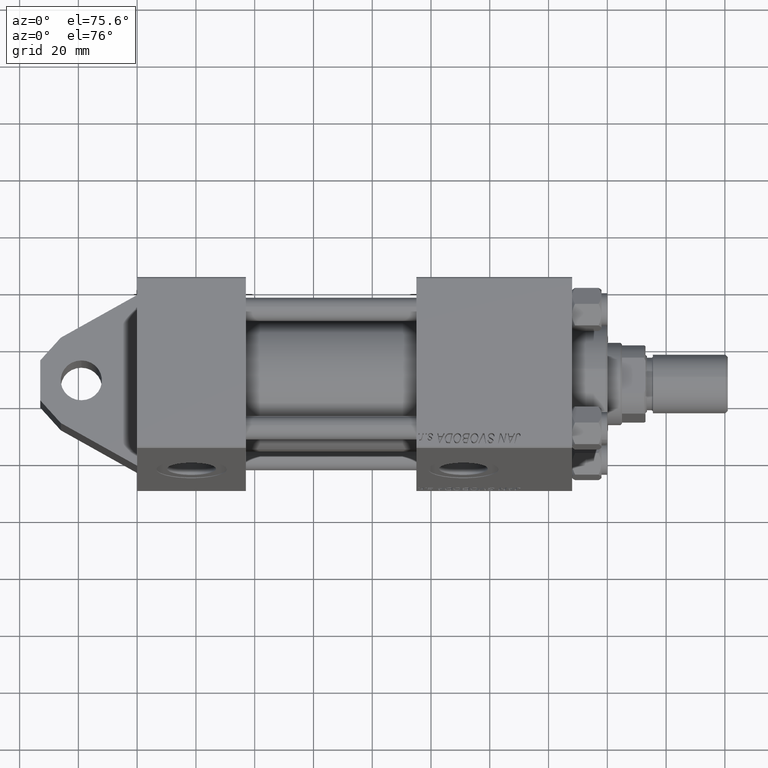
[diagram: clean part render]
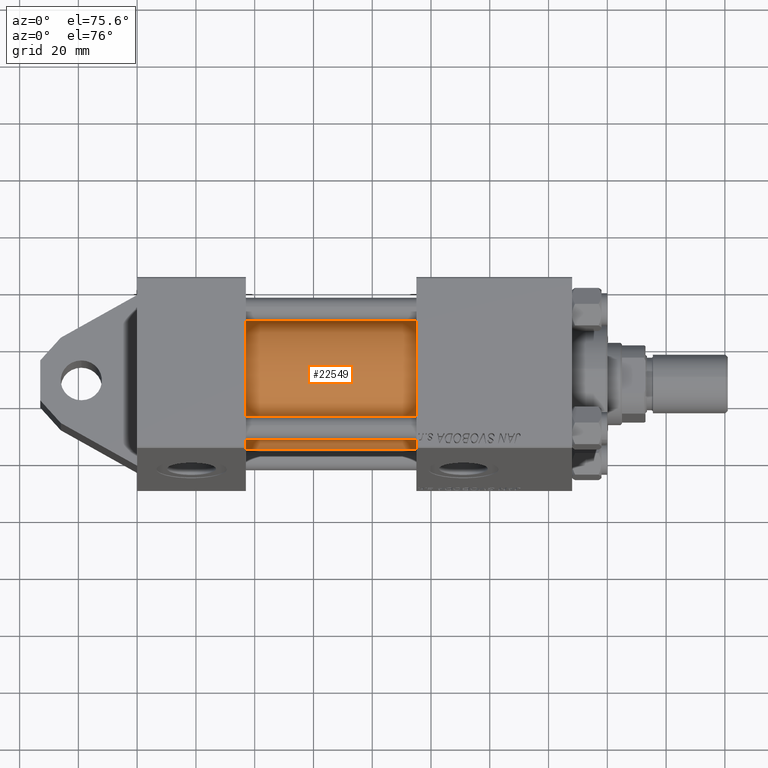
[diagram: same view with one face highlighted and labeled with its STEP entity id]
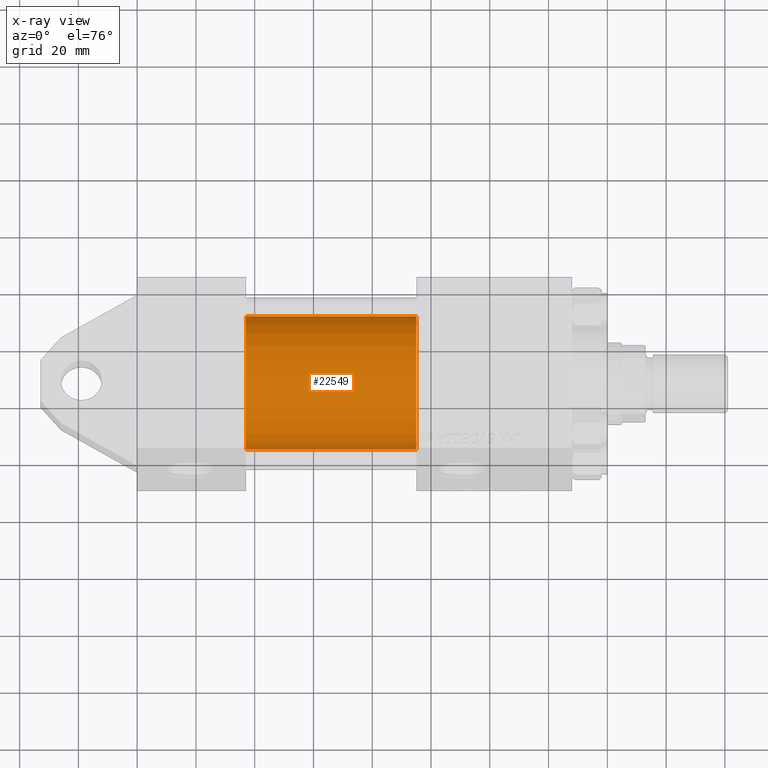
[diagram: x-ray of the same camera — body ghosted, the highlighted face saturated]
A machine part, auxiliary view. The second image highlights one B-rep face of the part: STEP entity #22549.
The next image is the same camera in x-ray: the body ghosted, the highlighted face saturated — about 0% of this face is hidden behind the body in this view.
In plain terms, the highlighted cylindrical surface (partial cylindrical patch) has radius 23 mm, axis along (-1, -0, 0).
Its self-contained STEP definition (entity closure, byte-faithful):
#841 = DIRECTION ( 'NONE',  ( -1.000000000000000000, -0.000000000000000000, -0.000000000000000000 ) ) ;
#1318 = DIRECTION ( 'NONE',  ( 0.000000000000000000, 0.000000000000000000, 1.000000000000000000 ) ) ;
#1670 = DIRECTION ( 'NONE',  ( -1.000000000000000000, -0.000000000000000000, -0.000000000000000000 ) ) ;
#4452 = LINE ( 'NONE', #36636, #35068 ) ;
#4619 = VERTEX_POINT ( 'NONE', #26916 ) ;
#4620 = CARTESIAN_POINT ( 'NONE',  ( 95.00000000000000000, -2.602085213965210642E-15, 0.000000000000000000 ) ) ;
#4714 = DIRECTION ( 'NONE',  ( 1.000000000000000000, -0.000000000000000000, 0.000000000000000000 ) ) ;
#5097 = FACE_OUTER_BOUND ( 'NONE', #17337, .T. ) ;
#11985 = DIRECTION ( 'NONE',  ( -1.000000000000000000, -0.000000000000000000, -0.000000000000000000 ) ) ;
#12819 = EDGE_CURVE ( 'NONE', #4619, #31251, #46369, .T. ) ;
#14733 = CARTESIAN_POINT ( 'NONE',  ( 95.00000000000000000, -2.602085213965210642E-15, 0.000000000000000000 ) ) ;
#15102 = ORIENTED_EDGE ( 'NONE', *, *, #36754, .T. ) ;
#16186 = CARTESIAN_POINT ( 'NONE',  ( 37.00000000000000000, -2.602085213965210642E-15, 23.00000000000000000 ) ) ;
#17337 = EDGE_LOOP ( 'NONE', ( #37468, #15102, #28674, #39380 ) ) ;
#18108 = CARTESIAN_POINT ( 'NONE',  ( 37.00000000000000000, -2.602085213965210642E-15, 0.000000000000000000 ) ) ;
#18165 = EDGE_CURVE ( 'NONE', #39574, #45699, #41284, .T. ) ;
#18940 = CYLINDRICAL_SURFACE ( 'NONE', #34551, 23.00000000000000000 ) ;
#22549 = ADVANCED_FACE ( 'NONE', ( #5097 ), #18940, .T. ) ;
#23040 = CARTESIAN_POINT ( 'NONE',  ( 95.00000000000000000, 2.146024240737012665E-16, -23.00000000000000000 ) ) ;
#25825 = DIRECTION ( 'NONE',  ( 0.000000000000000000, 0.000000000000000000, 1.000000000000000000 ) ) ;
#26840 = CARTESIAN_POINT ( 'NONE',  ( 95.00000000000000000, -2.602085213965210642E-15, 23.00000000000000000 ) ) ;
#26916 = CARTESIAN_POINT ( 'NONE',  ( 95.00000000000000000, 2.146024240737012665E-16, -23.00000000000000000 ) ) ;
#28282 = AXIS2_PLACEMENT_3D ( 'NONE', #14733, #40352, #46507 ) ;
#28674 = ORIENTED_EDGE ( 'NONE', *, *, #18165, .T. ) ;
#30408 = CARTESIAN_POINT ( 'NONE',  ( 37.00000000000000000, 2.146024240737012665E-16, -23.00000000000000000 ) ) ;
#31251 = VERTEX_POINT ( 'NONE', #26840 ) ;
#31468 = AXIS2_PLACEMENT_3D ( 'NONE', #18108, #4714, #25825 ) ;
#34551 = AXIS2_PLACEMENT_3D ( 'NONE', #4620, #841, #1318 ) ;
#35068 = VECTOR ( 'NONE', #11985, 1000.000000000000000 ) ;
#36636 = CARTESIAN_POINT ( 'NONE',  ( 95.00000000000000000, -2.602085213965210642E-15, 23.00000000000000000 ) ) ;
#36754 = EDGE_CURVE ( 'NONE', #4619, #39574, #40942, .T. ) ;
#37468 = ORIENTED_EDGE ( 'NONE', *, *, #12819, .F. ) ;
#38767 = EDGE_CURVE ( 'NONE', #31251, #45699, #4452, .T. ) ;
#39380 = ORIENTED_EDGE ( 'NONE', *, *, #38767, .F. ) ;
#39574 = VERTEX_POINT ( 'NONE', #30408 ) ;
#40352 = DIRECTION ( 'NONE',  ( 1.000000000000000000, 0.000000000000000000, 0.000000000000000000 ) ) ;
#40942 = LINE ( 'NONE', #23040, #44028 ) ;
#41284 = CIRCLE ( 'NONE', #31468, 23.00000000000000000 ) ;
#44028 = VECTOR ( 'NONE', #1670, 1000.000000000000000 ) ;
#45699 = VERTEX_POINT ( 'NONE', #16186 ) ;
#46369 = CIRCLE ( 'NONE', #28282, 23.00000000000000000 ) ;
#46507 = DIRECTION ( 'NONE',  ( 0.000000000000000000, 0.000000000000000000, -1.000000000000000000 ) ) ;